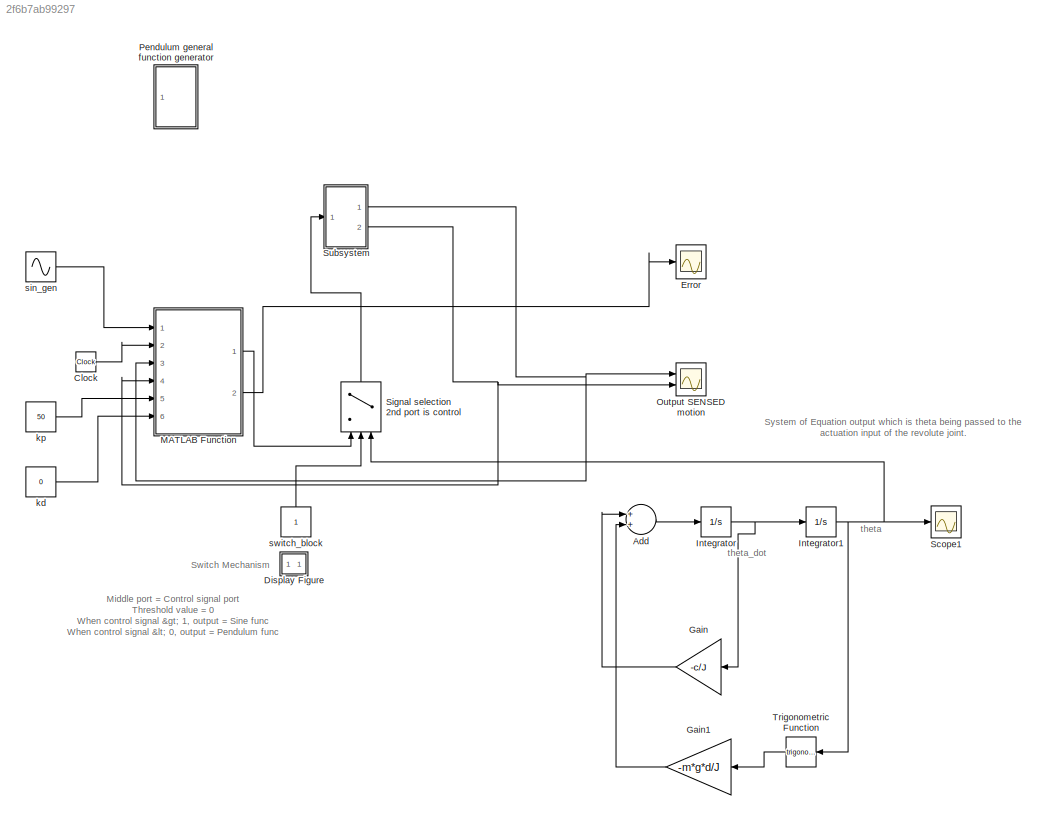
MODEL slx_2f6b7ab99297
KIND model
CONFIG AbsTol = auto
CONFIG EnableMultiTasking = off
CONFIG FixedStep = auto
CONFIG InitFcn = L = 0.495;\nm = 0.43;\nd = 0.023;\nJ = (1/12)*(m*L*L+m*d*d);\ng = 9.81;\nc = 0.00135;
CONFIG MaxStep = auto
CONFIG MinStep = auto
CONFIG RelTol = 1e-3
CONFIG SampleTimeConstraint = Unconstrained
CONFIG Solver = VariableStepAuto
CONFIG SolverName = VariableStepAuto
CONFIG StartTime = 0.0
CONFIG StopTime = 25
BLOCK [Sum] Add
  InputSameDT = off
  OutDataTypeStr = Inherit: Inherit via internal rule
  Ports = [2, 1]
  SaturateOnIntegerOverflow = off
BLOCK [Clock] Clock
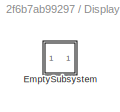
BLOCK [SubSystem] Display Figure
  Description = Help callback for conveyor model: mech_conveyor.  Opens Help browser to Type 19 marker at documentation for this tutorial model.
  OpenFcn = helpview([docroot '/toolbox/physmod/mech/mech.map'], 'mech_conveyor_help');
  Ports = []
  RequestExecContextInheritance = off
  Tag = Help
  Variant = off
BLOCK [SubSystem] Display Figure/EmptySubsystem
  Ports = []
  RequestExecContextInheritance = off
  Variant = off
BLOCK [Scope] Error
  NumInputPorts = 1
  Ports = [1]
  ScopeSpecificationString = Simulink.scopes.TimeScopeBlockCfg('CurrentConfiguration', extmgr.ConfigurationSet(extmgr.Configuration('Core','General UI',true),extmgr.Configuration('Core','Source UI',true),extmgr.Configuration('Sources','WiredSimulink',true,'DataLoggingSaveFormat','Array','DataLoggingDecimation','1','DataLoggingDecimateData',true,'DataLoggingVariableName','ScopeData1'),extmgr.Configuration('Visuals','Time Domai...<+1641ch>
BLOCK [Gain] Gain
  Gain = -c/J
  OutDataTypeStr = Inherit: Inherit via internal rule
  ParamDataTypeStr = Inherit: Inherit via internal rule
  SaturateOnIntegerOverflow = off
BLOCK [Gain] Gain1
  Gain = -m*g*d/J
  OutDataTypeStr = Inherit: Inherit via internal rule
  ParamDataTypeStr = Inherit: Inherit via internal rule
  SaturateOnIntegerOverflow = off
BLOCK [Integrator] Integrator
  Ports = [1, 1]
BLOCK [Integrator] Integrator1
  InitialCondition = 3.14/3
  Ports = [1, 1]
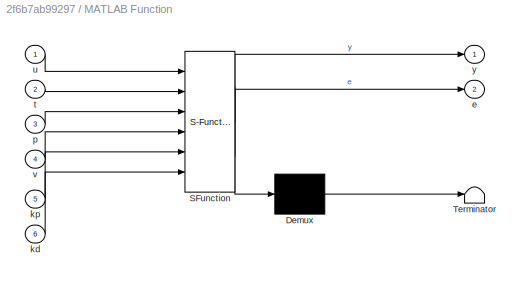
BLOCK [SubSystem] MATLAB Function
  ErrorFcn = Stateflow.Translate.translate
  PermitHierarchicalResolution = ExplicitOnly
  Ports = [6, 2]
  RequestExecContextInheritance = off
  SFBlockType = MATLAB Function
  TreatAsAtomicUnit = on
  Variant = off
BLOCK [Demux] MATLAB Function/ Demux 
  Outputs = 1
  Ports = [1, 1]
BLOCK [S-Function] MATLAB Function/ SFunction 
  EnableBusSupport = on
  FunctionName = sf_sfun
  PortCounts = [6 3]
  Ports = [6, 3]
  SFcnIsStateOwnerBlock = off
  SFunctionDeploymentMode = off
  Tag = Stateflow S-Function pendulum_3rdgen 2
BLOCK [Terminator] MATLAB Function/ Terminator 
BLOCK [Outport] MATLAB Function/e
  IconDisplay = Port number
  Port = 2
BLOCK [Inport] MATLAB Function/kd
  IconDisplay = Port number
  Port = 6
BLOCK [Inport] MATLAB Function/kp
  IconDisplay = Port number
  Port = 5
BLOCK [Inport] MATLAB Function/p
  IconDisplay = Port number
  Port = 3
BLOCK [Inport] MATLAB Function/t
  IconDisplay = Port number
  Port = 2
BLOCK [Inport] MATLAB Function/u
  IconDisplay = Port number
BLOCK [Inport] MATLAB Function/v
  IconDisplay = Port number
  Port = 4
BLOCK [Outport] MATLAB Function/y
  IconDisplay = Port number
BLOCK [Scope] Output SENSED motion
  NumInputPorts = 2
  Ports = [2]
  ScopeSpecificationString = Simulink.scopes.TimeScopeBlockCfg('CurrentConfiguration', extmgr.ConfigurationSet(extmgr.Configuration('Core','General UI',true),extmgr.Configuration('Core','Source UI',true),extmgr.Configuration('Sources','WiredSimulink',true,'DataLoggingSaveFormat','Array','DataLoggingDecimation','1','DataLoggingDecimateData',true),extmgr.Configuration('Visuals','Time Domain',true,'SerializedDisplays',{struct('M...<+1612ch>
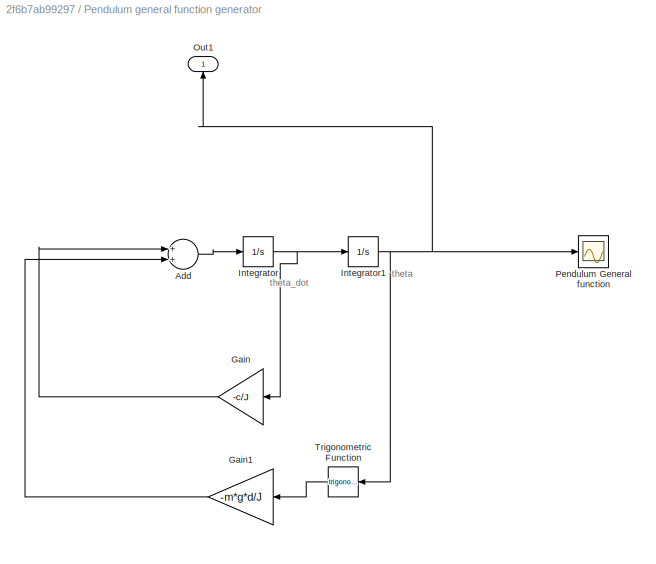
BLOCK [SubSystem] Pendulum general function generator
  Commented = on
  Ports = [0, 1]
  RequestExecContextInheritance = off
  Variant = off
BLOCK [Sum] Pendulum general function generator/Add
  InputSameDT = off
  OutDataTypeStr = Inherit: Inherit via internal rule
  Ports = [2, 1]
  SaturateOnIntegerOverflow = off
BLOCK [Gain] Pendulum general function generator/Gain
  Gain = -c/J
  OutDataTypeStr = Inherit: Inherit via internal rule
  ParamDataTypeStr = Inherit: Inherit via internal rule
  SaturateOnIntegerOverflow = off
BLOCK [Gain] Pendulum general function generator/Gain1
  Gain = -m*g*d/J
  OutDataTypeStr = Inherit: Inherit via internal rule
  ParamDataTypeStr = Inherit: Inherit via internal rule
  SaturateOnIntegerOverflow = off
BLOCK [Integrator] Pendulum general function generator/Integrator
  Ports = [1, 1]
BLOCK [Integrator] Pendulum general function generator/Integrator1
  InitialCondition = 3.14/3
  Ports = [1, 1]
BLOCK [Outport] Pendulum general function generator/Out1
  IconDisplay = Port number
BLOCK [Scope] Pendulum general function generator/Pendulum General function
  NumInputPorts = 1
  Ports = [1]
  ScopeSpecificationString = Simulink.scopes.TimeScopeBlockCfg('CurrentConfiguration', extmgr.ConfigurationSet(extmgr.Configuration('Core','General UI',true),extmgr.Configuration('Core','Source UI',true),extmgr.Configuration('Sources','WiredSimulink',true,'DataLoggingVariableName','ScopeData1'),extmgr.Configuration('Visuals','Time Domain',true,'SerializedDisplays',{struct('MinYLimReal','-1.29899','MaxYLimReal','1.3073','YLabe...<+1395ch>
BLOCK [Trigonometry] Pendulum general function generator/Trigonometric Function
  Ports = [1, 1]
BLOCK [Scope] Scope1
  NumInputPorts = 1
  Ports = [1]
  ScopeSpecificationString = Simulink.scopes.TimeScopeBlockCfg('CurrentConfiguration', extmgr.ConfigurationSet(extmgr.Configuration('Core','General UI',true),extmgr.Configuration('Core','Source UI',true),extmgr.Configuration('Sources','WiredSimulink',true,'DataLoggingVariableName','ScopeData1'),extmgr.Configuration('Visuals','Time Domain',true,'SerializedDisplays',{struct('MinYLimReal','-1.21596','MaxYLimReal','1.29807','YLab...<+1479ch>
BLOCK [Switch] Signal selection 2nd port is control
  Criteria = u2 > Threshold
  InputSameDT = off
  SaturateOnIntegerOverflow = off
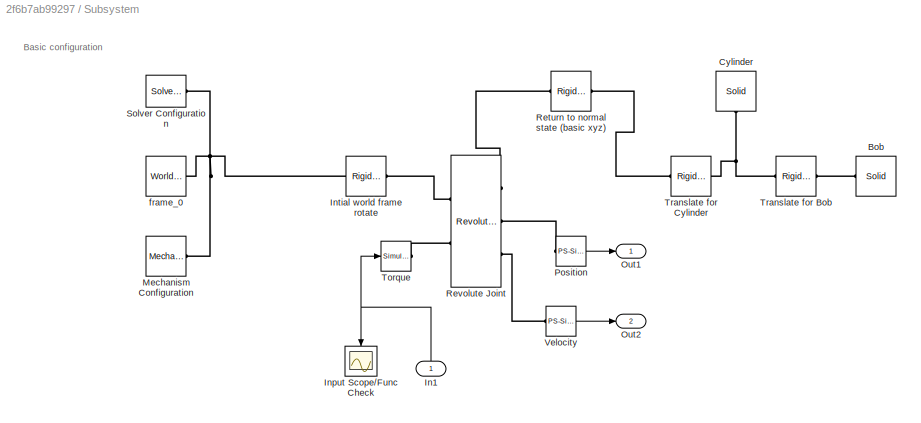
BLOCK [SubSystem] Subsystem
  Ports = [1, 2]
  RequestExecContextInheritance = off
  Variant = off
BLOCK [Reference] Subsystem/ Cylinder  REF=sm_lib/Body Elements/Solid
  Ports = [0, 0, 0, 0, 0, 0, 1]
  SourceBlock = sm_lib/Body Elements/Solid
  SourceProductBaseCode = MS
  SourceProductName = Simscape Multibody
  SourceType = Solid
BLOCK [Reference] Subsystem/Bob  REF=sm_lib/Body Elements/Solid
  Ports = [0, 0, 0, 0, 0, 0, 1]
  SourceBlock = sm_lib/Body Elements/Solid
  SourceProductBaseCode = MS
  SourceProductName = Simscape Multibody
  SourceType = Solid
BLOCK [Inport] Subsystem/In1
  IconDisplay = Port number
BLOCK [Scope] Subsystem/Input Scope//Func Check
  NumInputPorts = 1
  Ports = [1]
  ScopeSpecificationString = Simulink.scopes.TimeScopeBlockCfg('CurrentConfiguration', extmgr.ConfigurationSet(extmgr.Configuration('Core','General UI',true),extmgr.Configuration('Core','Source UI',true),extmgr.Configuration('Sources','WiredSimulink',true,'DataLoggingLimitDataPoints',true,'DataLoggingSaveFormat','Array','DataLoggingDecimation','1','DataLoggingDecimateData',true,'DataLoggingVariableName','ScopeData2'),extmgr.C...<+1691ch>
BLOCK [Reference] Subsystem/Intial world frame rotate  REF=sm_lib/Frames and
Transforms/Rigid
Transform
  AttributesFormatString = %<RotationAngle>%<RotationAngleUnits>\nabout %<RotationStandardAxis>
  Ports = [0, 0, 0, 0, 0, 1, 1]
  SourceBlock = sm_lib/Frames and\nTransforms/Rigid\nTransform
  SourceProductBaseCode = MS
  SourceProductName = Simscape Multibody
  SourceType = Rigid\nTransform
BLOCK [Reference] Subsystem/Mechanism Configuration  REF=sm_lib/Utilities/Mechanism
Configuration
  AttributesFormatString = g = %<GravityVector>%<GravityUnits>
  Ports = [0, 0, 0, 0, 0, 0, 1]
  SourceBlock = sm_lib/Utilities/Mechanism\nConfiguration
  SourceProductBaseCode = MS
  SourceProductName = Simscape Multibody
  SourceType = Mechanism\nConfiguration
BLOCK [Outport] Subsystem/Out1
  IconDisplay = Port number
BLOCK [Outport] Subsystem/Out2
  IconDisplay = Port number
  Port = 2
BLOCK [Reference] Subsystem/Position  REF=nesl_utility/PS-Simulink
Converter
  Ports = [0, 1, 0, 0, 0, 1]
  SourceBlock = nesl_utility/PS-Simulink\nConverter
  SourceProductBaseCode = SS
  SourceProductName = Simscape
  SourceType = PS-Simulink\nConverter
BLOCK [Reference] Subsystem/Return to normal state (basic xyz)  REF=sm_lib/Frames and
Transforms/Rigid
Transform
  AttributesFormatString = %<RotationAngle>%<RotationAngleUnits>\nabout %<RotationStandardAxis>
  Ports = [0, 0, 0, 0, 0, 1, 1]
  SourceBlock = sm_lib/Frames and\nTransforms/Rigid\nTransform
  SourceProductBaseCode = MS
  SourceProductName = Simscape Multibody
  SourceType = Rigid\nTransform
BLOCK [Reference] Subsystem/Revolute Joint  REF=sm_lib/Joints/Revolute Joint
  Ports = [0, 0, 0, 0, 0, 2, 3]
  SourceBlock = sm_lib/Joints/Revolute Joint
  SourceProductBaseCode = MS
  SourceProductName = Simscape Multibody
  SourceType = Revolute Joint
BLOCK [Reference] Subsystem/Solver Configuration  REF=nesl_utility/Solver
Configuration
  Ports = [0, 0, 0, 0, 0, 0, 1]
  SourceBlock = nesl_utility/Solver\nConfiguration
  SourceProductBaseCode = SS
  SourceProductName = Simscape
  SourceType = Solver\nConfiguration
BLOCK [Reference] Subsystem/Torque  REF=nesl_utility/Simulink-PS
Converter
  Ports = [1, 0, 0, 0, 0, 0, 1]
  SourceBlock = nesl_utility/Simulink-PS\nConverter
  SourceProductBaseCode = SS
  SourceProductName = Simscape
  SourceType = Simulink-PS\nConverter
BLOCK [Reference] Subsystem/Translate for Bob  REF=sm_lib/Frames and
Transforms/Rigid
Transform
  AttributesFormatString = %<TranslationStandardOffset>cm\n%<TranslationStandardAxis>
  Ports = [0, 0, 0, 0, 0, 1, 1]
  SourceBlock = sm_lib/Frames and\nTransforms/Rigid\nTransform
  SourceProductBaseCode = MS
  SourceProductName = Simscape Multibody
  SourceType = Rigid\nTransform
BLOCK [Reference] Subsystem/Translate for Cylinder  REF=sm_lib/Frames and
Transforms/Rigid
Transform
  AttributesFormatString = %<TranslationStandardOffset>cm\n%<TranslationStandardAxis>
  Ports = [0, 0, 0, 0, 0, 1, 1]
  SourceBlock = sm_lib/Frames and\nTransforms/Rigid\nTransform
  SourceProductBaseCode = MS
  SourceProductName = Simscape Multibody
  SourceType = Rigid\nTransform
BLOCK [Reference] Subsystem/Velocity  REF=nesl_utility/PS-Simulink
Converter
  Ports = [0, 1, 0, 0, 0, 1]
  SourceBlock = nesl_utility/PS-Simulink\nConverter
  SourceProductBaseCode = SS
  SourceProductName = Simscape
  SourceType = PS-Simulink\nConverter
BLOCK [Reference] Subsystem/frame_0  REF=sm_lib/Frames and
Transforms/World Frame
  Ports = [0, 0, 0, 0, 0, 0, 1]
  SourceBlock = sm_lib/Frames and\nTransforms/World Frame
  SourceProductBaseCode = MS
  SourceProductName = Simscape Multibody
  SourceType = World Frame
BLOCK [Trigonometry] Trigonometric Function
  Ports = [1, 1]
BLOCK [Constant] kd
  Value = 0
BLOCK [Constant] kp
  Value = 50
BLOCK [Sin] sin_gen
  AttributesFormatString = Amplitude = %<Amplitude>\nFrequency = %<Frequency>\nPhase = %<Phase>\n%<SineType>
  Ports = [0, 1]
  SampleTime = 0
BLOCK [Constant] switch_block
  AttributesFormatString = Input value = %<Value>
ANNOTATION (root): Middle port = Control signal port Threshold value = 0 When control signal > 1, output = Sine func When control signal < 0, output = Pendulum func
ANNOTATION (root): System of Equation output which is theta being passed to the actuation input of the revolute joint.
ANNOTATION (root): Switch Mechanism
ANNOTATION (root): theta
ANNOTATION (root): theta_dot
ANNOTATION Pendulum general function generator: theta
ANNOTATION Pendulum general function generator: theta_dot
ANNOTATION Subsystem: Basic configuration
LINE Add:1 -> Integrator:1
LINE Clock:1 -> MATLAB Function:2
LINE Gain1:1 -> Add:2
LINE Gain:1 -> Add:1
NET Integrator1:1 -> Scope1:1, Signal selection 2nd port is control:3, Trigonometric Function:1
NET Integrator:1 -> Gain:1, Integrator1:1
LINE MATLAB Function:1 -> Signal selection 2nd port is control:1
LINE MATLAB Function:2 -> Error:1
LINE Pendulum general function generator/Add:1 -> Pendulum general function generator/Integrator:1
LINE Pendulum general function generator/Gain1:1 -> Pendulum general function generator/Add:2
LINE Pendulum general function generator/Gain:1 -> Pendulum general function generator/Add:1
NET Pendulum general function generator/Integrator1:1 -> Pendulum general function generator/Out1:1, Pendulum general function generator/Pendulum General function:1, Pendulum general function generator/Trigonometric Function:1
NET Pendulum general function generator/Integrator:1 -> Pendulum general function generator/Gain:1, Pendulum general function generator/Integrator1:1
LINE Pendulum general function generator/Trigonometric Function:1 -> Pendulum general function generator/Gain1:1
LINE Signal selection 2nd port is control:1 -> Subsystem:1
NET Subsystem/In1:1 -> Subsystem/Input Scope//Func Check:1, Subsystem/Torque:1
LINE Subsystem/Position:1 -> Subsystem/Out1:1
LINE Subsystem/Velocity:1 -> Subsystem/Out2:1
NET Subsystem:1 -> MATLAB Function:3, Output SENSED motion:1
NET Subsystem:2 -> MATLAB Function:4, Output SENSED motion:2
LINE Trigonometric Function:1 -> Gain1:1
LINE kd:1 -> MATLAB Function:6
LINE kp:1 -> MATLAB Function:5
LINE sin_gen:1 -> MATLAB Function:1
LINE switch_block:1 -> Signal selection 2nd port is control:2
PNET net1: Subsystem/ Cylinder:RConn1 -- Subsystem/Translate for Bob:LConn1 -- Subsystem/Translate for Cylinder:RConn1
PLINE Subsystem/Bob:RConn1 -- Subsystem/Translate for Bob:RConn1
PNET net2: Subsystem/Intial world frame rotate:LConn1 -- Subsystem/Mechanism Configuration:RConn1 -- Subsystem/Solver Configuration:RConn1 -- Subsystem/frame_0:RConn1
PLINE Subsystem/Intial world frame rotate:RConn1 -- Subsystem/Revolute Joint:LConn1
PLINE Subsystem/Position:LConn1 -- Subsystem/Revolute Joint:RConn2
PLINE Subsystem/Return to normal state (basic xyz):LConn1 -- Subsystem/Revolute Joint:RConn1
PLINE Subsystem/Return to normal state (basic xyz):RConn1 -- Subsystem/Translate for Cylinder:LConn1
PLINE Subsystem/Revolute Joint:LConn2 -- Subsystem/Torque:RConn1
PLINE Subsystem/Revolute Joint:RConn3 -- Subsystem/Velocity:LConn1
note: NET lines group one-source signal fan-out (src -> all destinations, sorted); 1:1 wires keep LINE; PNET lines group multi-terminal physical nets as a canonical sorted terminal list (undirected conserving connections); 2-terminal nets keep the pairwise PLINE form
CHART MATLAB Function states=1 transitions=1
  STATE_LABEL 'eML_blk_kernel()'
  STATE_LABEL 'SCRIPT:\nfunction [y, e]= fcn(u,t,p,v,kp,kd)\np_des = -pi/6; %desired position\n%p_des = u;\nv_des = 5*cos(t);\ne = p - p_des; %error\ny = -kp*e-kd*(v-v_des);\n%y = u;  %-0.43*9.8*0.5/.009;\n'
